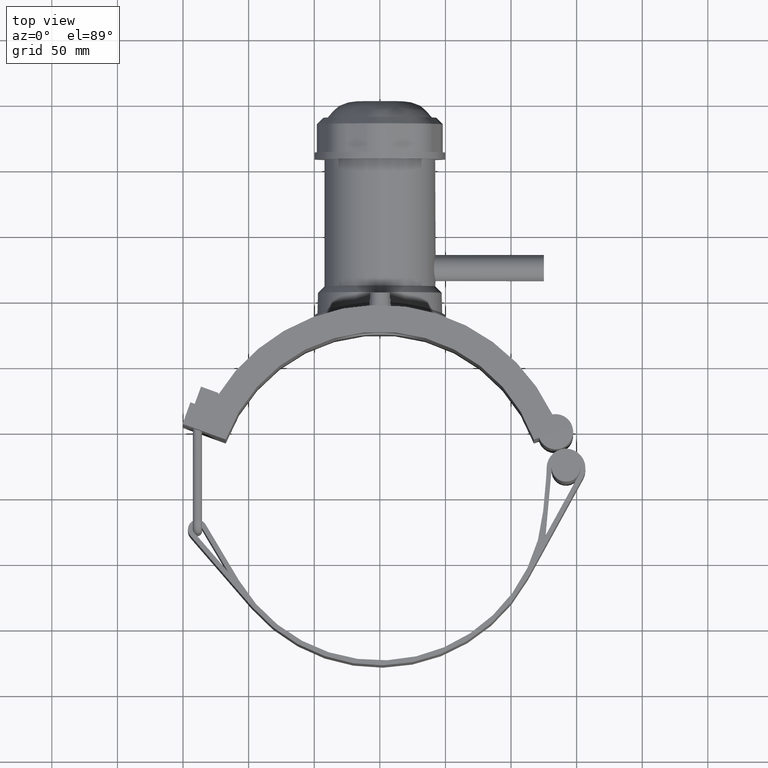
[diagram: clean part render]
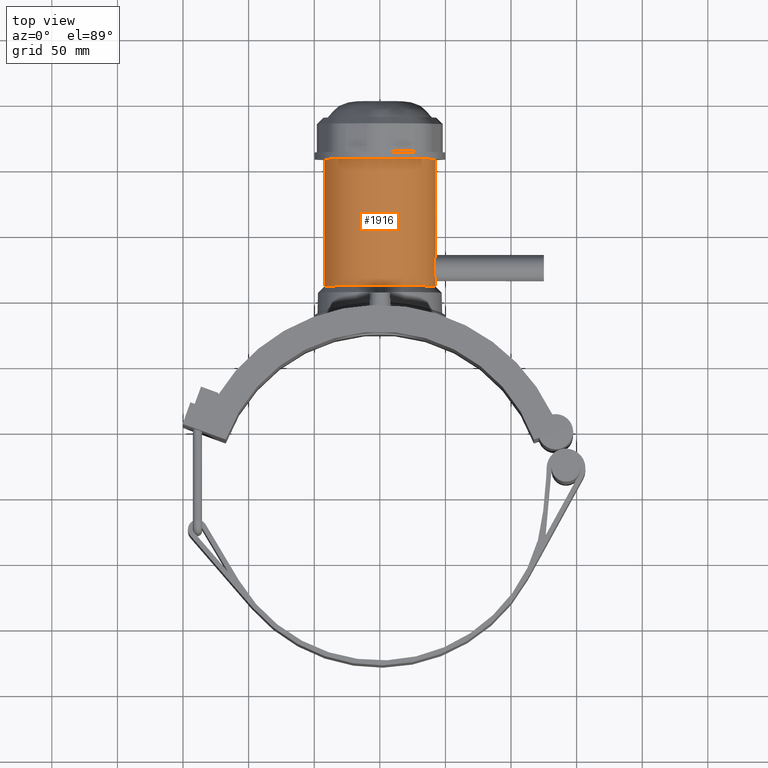
[diagram: same view with one face highlighted and labeled with its STEP entity id]
A machine part, top view. The second image highlights one B-rep face of the part: STEP entity #1916.
In plain terms, the highlighted cylindrical surface (bore or boss wall) has radius 42.5 mm, axis along (0, 1, 0).
Its self-contained STEP definition (entity closure, byte-faithful):
#370=FACE_BOUND('',#626,.T.);
#371=FACE_BOUND('',#627,.T.);
#404=B_SPLINE_CURVE_WITH_KNOTS('',3,(#2980,#2981,#2982,#2983,#2984,#2985,
#2986,#2987,#2988,#2989,#2990,#2991,#2992,#2993,#2994,#2995,#2996,#2997,
#2998,#2999,#3000,#3001,#3002,#3003,#3004,#3005,#3006,#3007,#3008,#3009,
#3010,#3011,#3012,#3013),.UNSPECIFIED.,.T.,.F.,(4,2,2,2,2,2,2,2,2,2,2,2,
2,2,2,2,4),(0.,0.378238720270974,0.756477440541947,1.13467495172414,1.51287246290632,
1.89106997408851,2.2692674852707,2.64750620554167,3.02574492581265,3.40398364608362,
3.78222236635459,4.16041987753678,4.53861738871897,4.91681489990116,5.29501241108335,
5.67325113135432,6.05148985162529),.UNSPECIFIED.);
#426=CYLINDRICAL_SURFACE('',#2070,42.5);
#495=FACE_OUTER_BOUND('',#625,.T.);
#625=EDGE_LOOP('',(#1447));
#626=EDGE_LOOP('',(#1448));
#627=EDGE_LOOP('',(#1449));
#758=CIRCLE('',#2053,42.5);
#765=CIRCLE('',#2071,42.5000000000001);
#825=VERTEX_POINT('',#2979);
#869=VERTEX_POINT('',#3152);
#879=VERTEX_POINT('',#3221);
#1003=EDGE_CURVE('',#825,#825,#404,.T.);
#1071=EDGE_CURVE('',#869,#869,#758,.T.);
#1090=EDGE_CURVE('',#879,#879,#765,.T.);
#1447=ORIENTED_EDGE('',*,*,#1071,.T.);
#1448=ORIENTED_EDGE('',*,*,#1003,.T.);
#1449=ORIENTED_EDGE('',*,*,#1090,.F.);
#1916=ADVANCED_FACE('',(#495,#370,#371),#426,.T.);
#2053=AXIS2_PLACEMENT_3D('',#3153,#2369,#2370);
#2070=AXIS2_PLACEMENT_3D('',#3220,#2414,#2415);
#2071=AXIS2_PLACEMENT_3D('',#3222,#2416,#2417);
#2369=DIRECTION('center_axis',(0.,1.,3.06161699786838E-16));
#2370=DIRECTION('ref_axis',(1.,0.,0.));
#2414=DIRECTION('center_axis',(0.,1.,3.06161699786838E-16));
#2415=DIRECTION('ref_axis',(0.,0.,1.));
#2416=DIRECTION('center_axis',(0.,1.,3.06161699786838E-16));
#2417=DIRECTION('ref_axis',(1.,0.,0.));
#2979=CARTESIAN_POINT('',(41.3067791046458,175.,-10.));
#2980=CARTESIAN_POINT('Ctrl Pts',(41.3067791046458,175.,-10.));
#2981=CARTESIAN_POINT('Ctrl Pts',(41.3067791046458,173.739204265763,-10.));
#2982=CARTESIAN_POINT('Ctrl Pts',(41.3705076140414,172.397754268064,-9.74705855738271));
#2983=CARTESIAN_POINT('Ctrl Pts',(41.5980389480806,169.935452488933,-8.72509024477488));
#2984=CARTESIAN_POINT('Ctrl Pts',(41.7582703479489,168.814171033152,-7.95630665688289));
#2985=CARTESIAN_POINT('Ctrl Pts',(42.0569864498139,167.043789789843,-6.18592541357391));
#2986=CARTESIAN_POINT('Ctrl Pts',(42.2152594777164,166.274930883915,-5.0646035393098));
#2987=CARTESIAN_POINT('Ctrl Pts',(42.4382740980817,165.252907713889,-2.60215934545588));
#2988=CARTESIAN_POINT('Ctrl Pts',(42.5,165.,-1.26065837060729));
#2989=CARTESIAN_POINT('Ctrl Pts',(42.5,165.,1.26065837060729));
#2990=CARTESIAN_POINT('Ctrl Pts',(42.4382740980817,165.252907713889,2.60215934545587));
#2991=CARTESIAN_POINT('Ctrl Pts',(42.2152594777165,166.274930883915,5.0646035393098));
#2992=CARTESIAN_POINT('Ctrl Pts',(42.0569864498139,167.043789789843,6.18592541357391));
#2993=CARTESIAN_POINT('Ctrl Pts',(41.7582703479489,168.814171033152,7.95630665688289));
#2994=CARTESIAN_POINT('Ctrl Pts',(41.5980389480806,169.935452488933,8.72509024477488));
#2995=CARTESIAN_POINT('Ctrl Pts',(41.3705076140414,172.397754268064,9.74705855738271));
#2996=CARTESIAN_POINT('Ctrl Pts',(41.3067791046458,173.739204265763,10.));
#2997=CARTESIAN_POINT('Ctrl Pts',(41.3067791046458,176.260795734237,10.));
#2998=CARTESIAN_POINT('Ctrl Pts',(41.3705076140414,177.602245731936,9.74705855738271));
#2999=CARTESIAN_POINT('Ctrl Pts',(41.5980389480806,180.064547511067,8.72509024477488));
#3000=CARTESIAN_POINT('Ctrl Pts',(41.7582703479489,181.185828966848,7.9563066568829));
#3001=CARTESIAN_POINT('Ctrl Pts',(42.0569864498139,182.956210210157,6.18592541357391));
#3002=CARTESIAN_POINT('Ctrl Pts',(42.2152594777165,183.725069116085,5.06460353930976));
#3003=CARTESIAN_POINT('Ctrl Pts',(42.4382740980817,184.747092286111,2.60215934545583));
#3004=CARTESIAN_POINT('Ctrl Pts',(42.5,185.,1.26065837060729));
#3005=CARTESIAN_POINT('Ctrl Pts',(42.5,185.,-1.26065837060729));
#3006=CARTESIAN_POINT('Ctrl Pts',(42.4382740980817,184.747092286111,-2.60215934545587));
#3007=CARTESIAN_POINT('Ctrl Pts',(42.2152594777164,183.725069116085,-5.0646035393098));
#3008=CARTESIAN_POINT('Ctrl Pts',(42.0569864498139,182.956210210157,-6.18592541357391));
#3009=CARTESIAN_POINT('Ctrl Pts',(41.7582703479489,181.185828966848,-7.95630665688289));
#3010=CARTESIAN_POINT('Ctrl Pts',(41.5980389480806,180.064547511067,-8.72509024477484));
#3011=CARTESIAN_POINT('Ctrl Pts',(41.3705076140414,177.602245731936,-9.7470585573827));
#3012=CARTESIAN_POINT('Ctrl Pts',(41.3067791046458,176.260795734237,-10.));
#3013=CARTESIAN_POINT('Ctrl Pts',(41.3067791046458,175.,-10.));
#3152=CARTESIAN_POINT('',(0.,161.,42.5));
#3153=CARTESIAN_POINT('Origin',(0.,161.,1.10218211923262E-14));
#3220=CARTESIAN_POINT('Origin',(0.,209.375,2.58323934195145E-14));
#3221=CARTESIAN_POINT('',(0.,257.75,42.5000000000001));
#3222=CARTESIAN_POINT('Origin',(0.,257.75,4.06429656467028E-14));